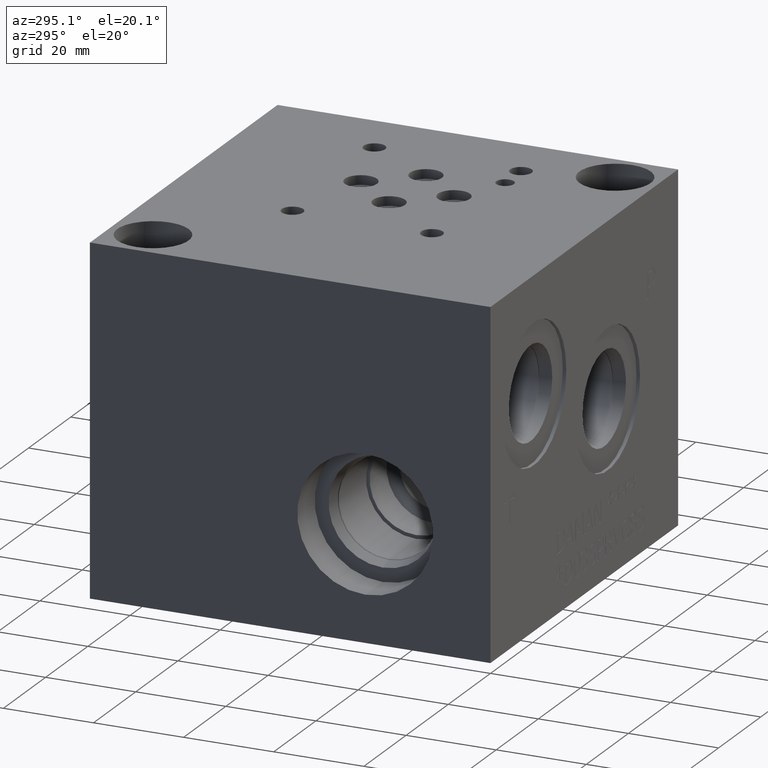
[diagram: clean part render]
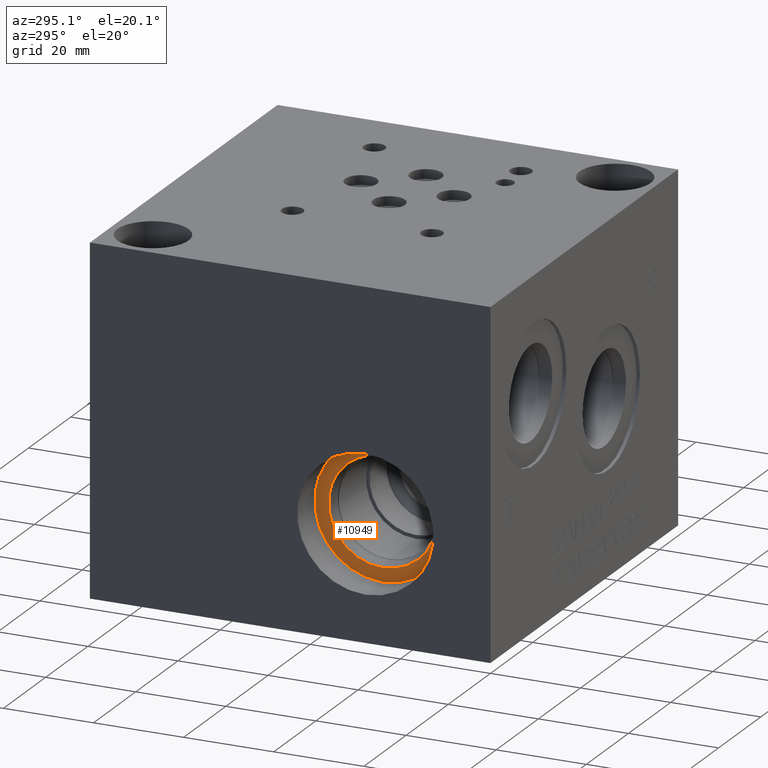
[diagram: same view with one face highlighted and labeled with its STEP entity id]
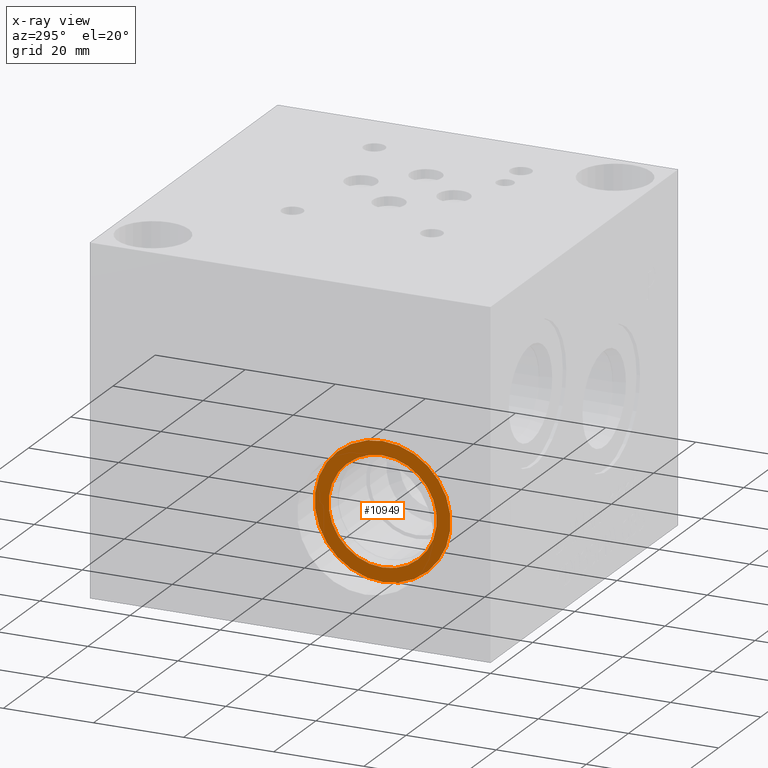
[diagram: x-ray of the same camera — body ghosted, the highlighted face saturated]
A machine part, auxiliary view. The second image highlights one B-rep face of the part: STEP entity #10949.
The next image is the same camera in x-ray: the body ghosted, the highlighted face saturated — about 0% of this face is hidden behind the body in this view.
In plain terms, the highlighted planar face has unit normal (1, 0, 0).
Its self-contained STEP definition (entity closure, byte-faithful):
#189=CIRCLE('',#11452,15.08);
#190=CIRCLE('',#11453,15.08);
#191=CIRCLE('',#11455,12.);
#192=CIRCLE('',#11456,12.);
#359=FACE_BOUND('',#1811,.T.);
#679=PLANE('',#11454);
#1190=FACE_OUTER_BOUND('',#1810,.T.);
#1810=EDGE_LOOP('',(#9496,#9497));
#1811=EDGE_LOOP('',(#9498,#9499));
#5154=VERTEX_POINT('',#18752);
#5155=VERTEX_POINT('',#18754);
#5156=VERTEX_POINT('',#18758);
#5157=VERTEX_POINT('',#18759);
#6638=EDGE_CURVE('',#5154,#5155,#189,.T.);
#6639=EDGE_CURVE('',#5155,#5154,#190,.T.);
#6640=EDGE_CURVE('',#5156,#5157,#191,.T.);
#6641=EDGE_CURVE('',#5157,#5156,#192,.T.);
#9496=ORIENTED_EDGE('',*,*,#6639,.F.);
#9497=ORIENTED_EDGE('',*,*,#6638,.F.);
#9498=ORIENTED_EDGE('',*,*,#6640,.T.);
#9499=ORIENTED_EDGE('',*,*,#6641,.T.);
#10949=ADVANCED_FACE('',(#1190,#359),#679,.F.);
#11452=AXIS2_PLACEMENT_3D('',#18755,#13424,#13425);
#11453=AXIS2_PLACEMENT_3D('',#18756,#13426,#13427);
#11454=AXIS2_PLACEMENT_3D('',#18757,#13428,#13429);
#11455=AXIS2_PLACEMENT_3D('',#18760,#13430,#13431);
#11456=AXIS2_PLACEMENT_3D('',#18761,#13432,#13433);
#13424=DIRECTION('center_axis',(1.,0.,0.));
#13425=DIRECTION('ref_axis',(0.,0.,-1.));
#13426=DIRECTION('center_axis',(1.,0.,0.));
#13427=DIRECTION('ref_axis',(0.,0.,-1.));
#13428=DIRECTION('center_axis',(1.,0.,0.));
#13429=DIRECTION('ref_axis',(0.,0.,-1.));
#13430=DIRECTION('center_axis',(1.,0.,0.));
#13431=DIRECTION('ref_axis',(0.,0.,-1.));
#13432=DIRECTION('center_axis',(1.,0.,0.));
#13433=DIRECTION('ref_axis',(0.,0.,-1.));
#18752=CARTESIAN_POINT('',(8.2296,27.7876,10.32));
#18754=CARTESIAN_POINT('',(8.2296,27.7876,40.48));
#18755=CARTESIAN_POINT('Origin',(8.2296,27.7876,25.4));
#18756=CARTESIAN_POINT('Origin',(8.2296,27.7876,25.4));
#18757=CARTESIAN_POINT('Origin',(8.2296,27.7876,37.4));
#18758=CARTESIAN_POINT('',(8.2296,27.7876,37.4));
#18759=CARTESIAN_POINT('',(8.2296,27.7876,13.4));
#18760=CARTESIAN_POINT('Origin',(8.2296,27.7876,25.4));
#18761=CARTESIAN_POINT('Origin',(8.2296,27.7876,25.4));